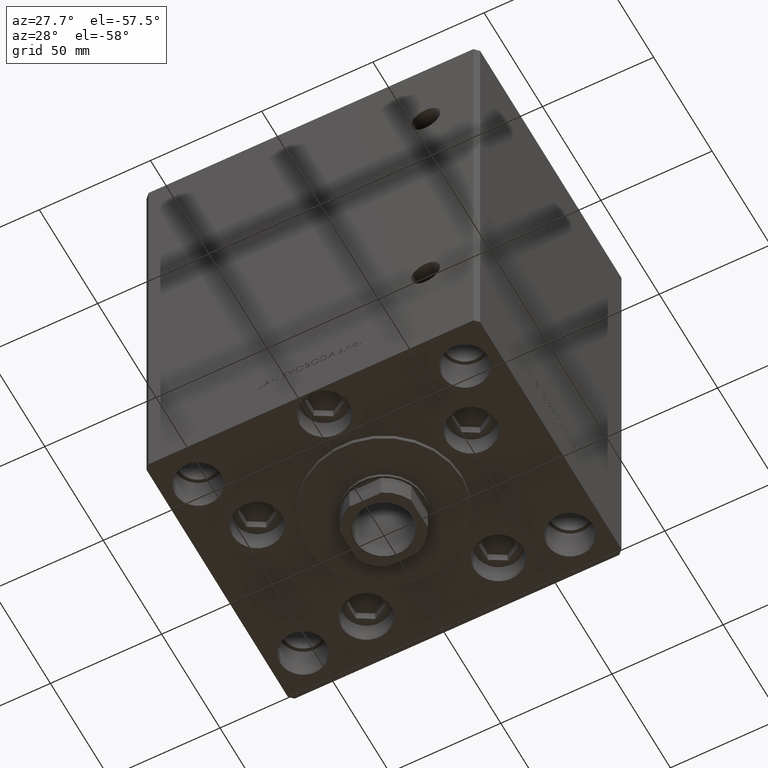
[diagram: clean part render]
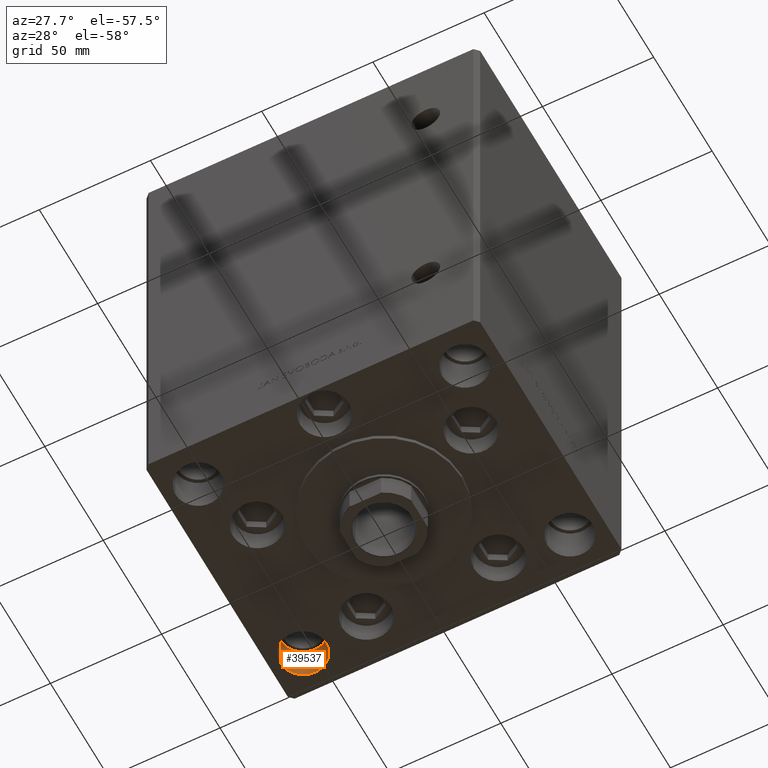
[diagram: same view with one face highlighted and labeled with its STEP entity id]
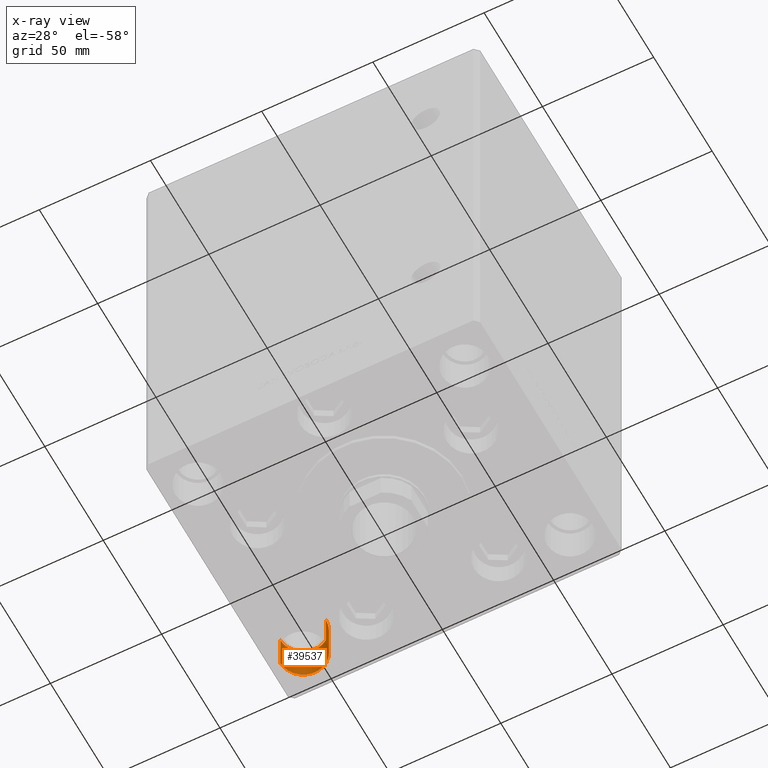
[diagram: x-ray of the same camera — body ghosted, the highlighted face saturated]
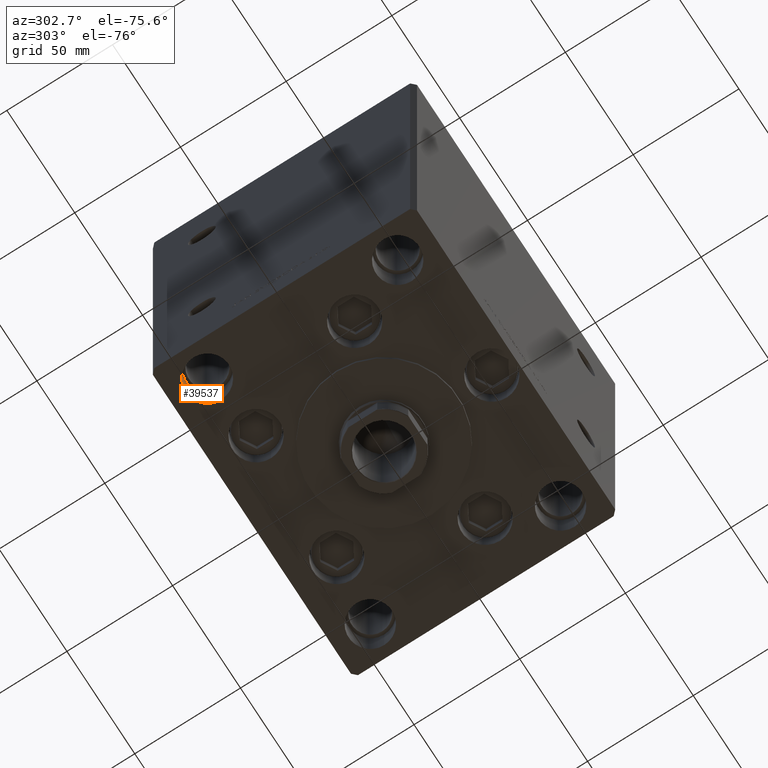
[diagram: same view with one face highlighted and labeled with its STEP entity id]
A machine part, auxiliary view. The second image highlights one B-rep face of the part: STEP entity #39537.
The next image is the same camera in x-ray: the body ghosted, the highlighted face saturated — about 0% of this face is hidden behind the body in this view.
A second angle (auxiliary view) of the same face is appended — the face is thin or edge-on in the first view.
In plain terms, the highlighted cylindrical surface (edge-blend (fillet) strip) has radius 10.25 mm, axis along (0, 0, -1).
Its self-contained STEP definition (entity closure, byte-faithful):
#2046 = LINE ( 'NONE', #33853, #45174 ) ;
#2295 = EDGE_CURVE ( 'NONE', #11414, #19659, #2046, .T. ) ;
#2665 = ORIENTED_EDGE ( 'NONE', *, *, #21841, .F. ) ;
#7839 = ORIENTED_EDGE ( 'NONE', *, *, #43254, .F. ) ;
#8281 = CIRCLE ( 'NONE', #37516, 10.24999999999999467 ) ;
#10724 = DIRECTION ( 'NONE',  ( -0.000000000000000000, -0.000000000000000000, 1.000000000000000000 ) ) ;
#11414 = VERTEX_POINT ( 'NONE', #26948 ) ;
#11922 = EDGE_LOOP ( 'NONE', ( #7839, #2665, #46490, #46863 ) ) ;
#15776 = CARTESIAN_POINT ( 'NONE',  ( 49.75000000000000000, 45.00000000000000000, -17.00000000000000000 ) ) ;
#15965 = FACE_OUTER_BOUND ( 'NONE', #11922, .T. ) ;
#18632 = VECTOR ( 'NONE', #42970, 1000.000000000000000 ) ;
#19008 = VERTEX_POINT ( 'NONE', #37161 ) ;
#19659 = VERTEX_POINT ( 'NONE', #47528 ) ;
#20468 = DIRECTION ( 'NONE',  ( 1.000000000000000000, 0.000000000000000000, 0.000000000000000000 ) ) ;
#21841 = EDGE_CURVE ( 'NONE', #11414, #19008, #8281, .T. ) ;
#25199 = AXIS2_PLACEMENT_3D ( 'NONE', #40785, #48154, #20468 ) ;
#26948 = CARTESIAN_POINT ( 'NONE',  ( 70.25000000000000000, 45.00000000000000000, -17.00000000000000000 ) ) ;
#29001 = CARTESIAN_POINT ( 'NONE',  ( 60.00000000000000000, 45.00000000000000000, -17.00000000000000000 ) ) ;
#31055 = LINE ( 'NONE', #15776, #18632 ) ;
#33067 = DIRECTION ( 'NONE',  ( 0.000000000000000000, 0.000000000000000000, 1.000000000000000000 ) ) ;
#33445 = VERTEX_POINT ( 'NONE', #46212 ) ;
#33853 = CARTESIAN_POINT ( 'NONE',  ( 70.25000000000000000, 45.00000000000000000, -17.00000000000000000 ) ) ;
#34800 = CYLINDRICAL_SURFACE ( 'NONE', #47720, 10.24999999999999467 ) ;
#37161 = CARTESIAN_POINT ( 'NONE',  ( 49.75000000000000000, 45.00000000000000000, -17.00000000000000000 ) ) ;
#37516 = AXIS2_PLACEMENT_3D ( 'NONE', #29001, #33067, #48555 ) ;
#38962 = CIRCLE ( 'NONE', #25199, 10.24999999999999467 ) ;
#39537 = ADVANCED_FACE ( 'NONE', ( #15965 ), #34800, .F. ) ;
#40785 = CARTESIAN_POINT ( 'NONE',  ( 60.00000000000000000, 45.00000000000000000, 0.000000000000000000 ) ) ;
#42970 = DIRECTION ( 'NONE',  ( -0.000000000000000000, -0.000000000000000000, 1.000000000000000000 ) ) ;
#43254 = EDGE_CURVE ( 'NONE', #19008, #33445, #31055, .T. ) ;
#45174 = VECTOR ( 'NONE', #49341, 1000.000000000000000 ) ;
#45217 = EDGE_CURVE ( 'NONE', #19659, #33445, #38962, .T. ) ;
#45532 = CARTESIAN_POINT ( 'NONE',  ( 60.00000000000000000, 45.00000000000000000, -17.00000000000000000 ) ) ;
#46212 = CARTESIAN_POINT ( 'NONE',  ( 49.75000000000000000, 45.00000000000000000, 0.000000000000000000 ) ) ;
#46490 = ORIENTED_EDGE ( 'NONE', *, *, #2295, .T. ) ;
#46863 = ORIENTED_EDGE ( 'NONE', *, *, #45217, .T. ) ;
#47528 = CARTESIAN_POINT ( 'NONE',  ( 70.25000000000000000, 45.00000000000000000, 0.000000000000000000 ) ) ;
#47720 = AXIS2_PLACEMENT_3D ( 'NONE', #45532, #10724, #49356 ) ;
#48154 = DIRECTION ( 'NONE',  ( 0.000000000000000000, 0.000000000000000000, 1.000000000000000000 ) ) ;
#48555 = DIRECTION ( 'NONE',  ( 1.000000000000000000, 0.000000000000000000, 0.000000000000000000 ) ) ;
#49341 = DIRECTION ( 'NONE',  ( -0.000000000000000000, -0.000000000000000000, 1.000000000000000000 ) ) ;
#49356 = DIRECTION ( 'NONE',  ( 1.000000000000000000, 0.000000000000000000, 0.000000000000000000 ) ) ;